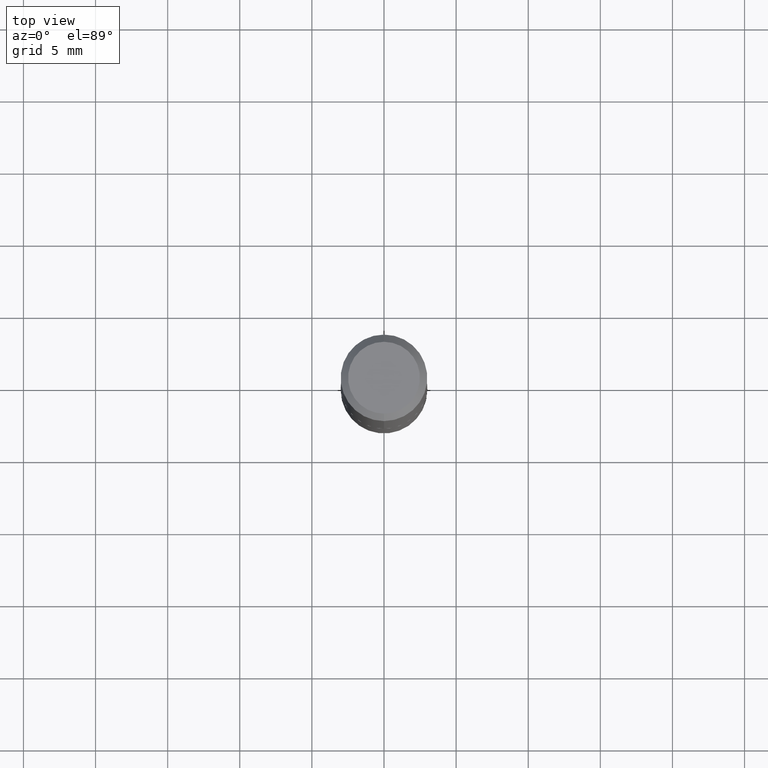
[diagram: clean part render]
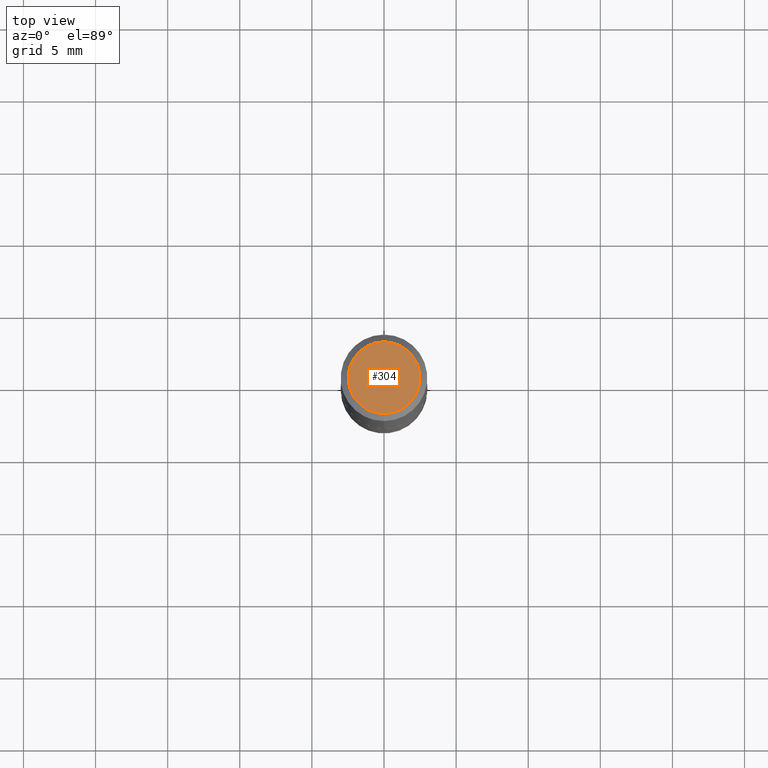
[diagram: same view with one face highlighted and labeled with its STEP entity id]
A machine part, top view. The second image highlights one B-rep face of the part: STEP entity #304.
In plain terms, the highlighted planar face has unit normal (0, -0, -1).
Its self-contained STEP definition (entity closure, byte-faithful):
#2 = DIRECTION ( 'NONE',  ( 2.444963449753266719E-29, -3.492205038016684672E-15, -1.000000000000000000 ) ) ;
#10 = AXIS2_PLACEMENT_3D ( 'NONE', #356, #207, #36 ) ;
#36 = DIRECTION ( 'NONE',  ( -6.982962677686265922E-15, -1.000000000000000000, 3.492205038016685066E-15 ) ) ;
#64 = CARTESIAN_POINT ( 'NONE',  ( 1.876808465074555705E-45, -2.680694461010098191E-31, -7.676222993288319083E-17 ) ) ;
#66 = AXIS2_PLACEMENT_3D ( 'NONE', #64, #122, #246 ) ;
#68 = DIRECTION ( 'NONE',  ( 6.982962677686265922E-15, 1.000000000000000000, -3.492205038016684672E-15 ) ) ;
#122 = DIRECTION ( 'NONE',  ( -2.444963449753266719E-29, 3.492205038016685066E-15, 1.000000000000000000 ) ) ;
#173 = CIRCLE ( 'NONE', #66, 0.09810000000000008991 ) ;
#195 = ORIENTED_EDGE ( 'NONE', *, *, #376, .T. ) ;
#203 = CIRCLE ( 'NONE', #10, 0.09810000000000008991 ) ;
#207 = DIRECTION ( 'NONE',  ( -2.444963449753266719E-29, 3.492205038016685066E-15, 1.000000000000000000 ) ) ;
#246 = DIRECTION ( 'NONE',  ( -6.982962677686265922E-15, -1.000000000000000000, 3.492205038016685066E-15 ) ) ;
#254 = VERTEX_POINT ( 'NONE', #382 ) ;
#273 = CARTESIAN_POINT ( 'NONE',  ( -7.416198335591025037E-16, -0.09810000000000008991, 2.658230842965539314E-16 ) ) ;
#294 = PLANE ( 'NONE',  #383 ) ;
#296 = ORIENTED_EDGE ( 'NONE', *, *, #352, .T. ) ;
#304 = ADVANCED_FACE ( 'NONE', ( #392 ), #294, .F. ) ;
#352 = EDGE_CURVE ( 'NONE', #413, #254, #203, .T. ) ;
#355 = EDGE_LOOP ( 'NONE', ( #195, #296 ) ) ;
#356 = CARTESIAN_POINT ( 'NONE',  ( 1.876808465074555705E-45, -2.680694461010098191E-31, -7.676222993288319083E-17 ) ) ;
#376 = EDGE_CURVE ( 'NONE', #254, #413, #173, .T. ) ;
#382 = CARTESIAN_POINT ( 'NONE',  ( 7.548582654578859505E-16, 0.09810000000000008991, -4.193475441623202884E-16 ) ) ;
#383 = AXIS2_PLACEMENT_3D ( 'NONE', #418, #2, #68 ) ;
#392 = FACE_OUTER_BOUND ( 'NONE', #355, .T. ) ;
#413 = VERTEX_POINT ( 'NONE', #273 ) ;
#418 = CARTESIAN_POINT ( 'NONE',  ( 6.850286386810233425E-16, 0.09810000000000008991, -3.809664291958786868E-16 ) ) ;